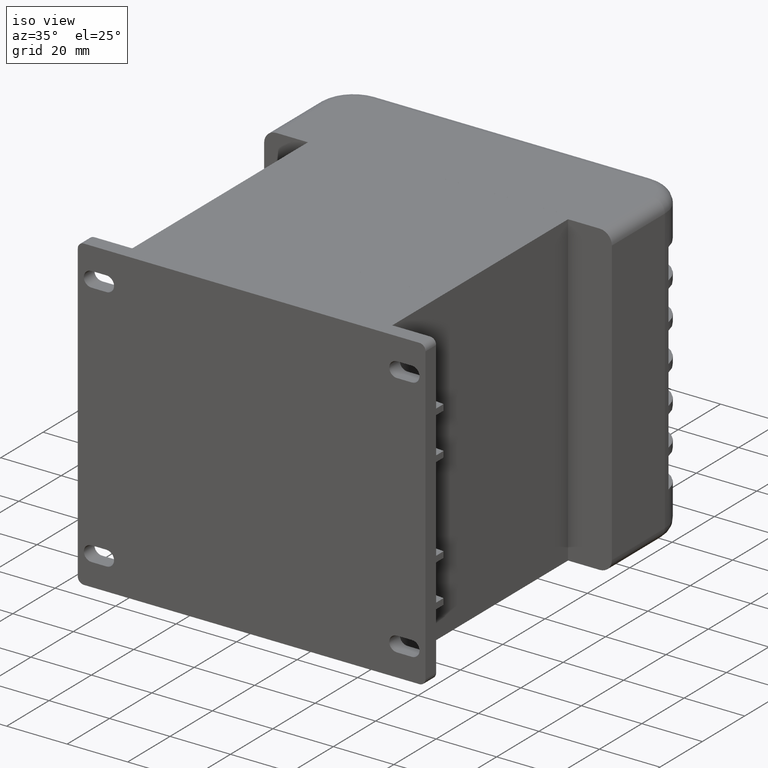
[diagram: clean part render]
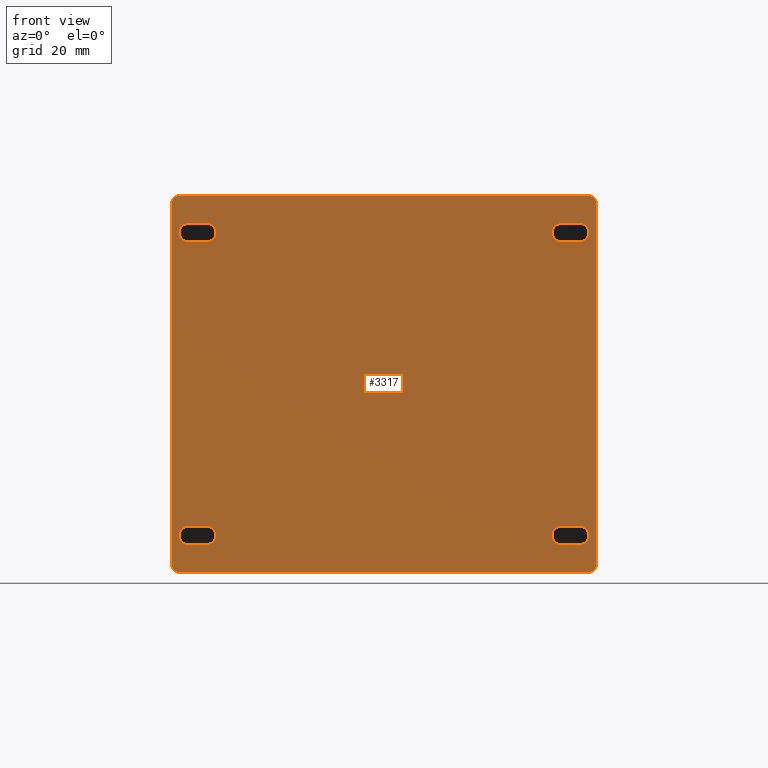
[diagram: tour spotlight — one face highlighted and labeled with its STEP entity id]
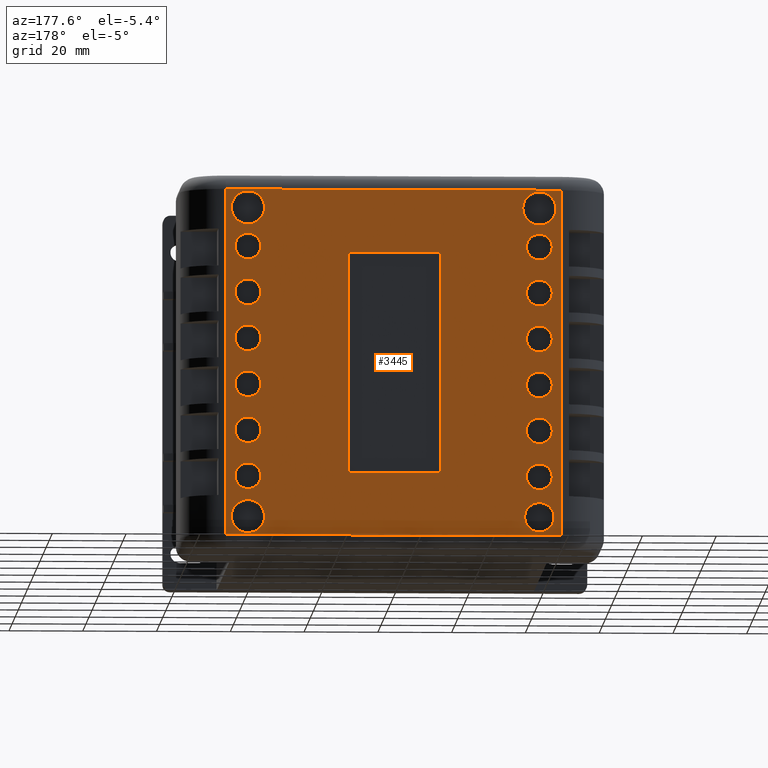
[diagram: tour spotlight — one face highlighted and labeled with its STEP entity id]
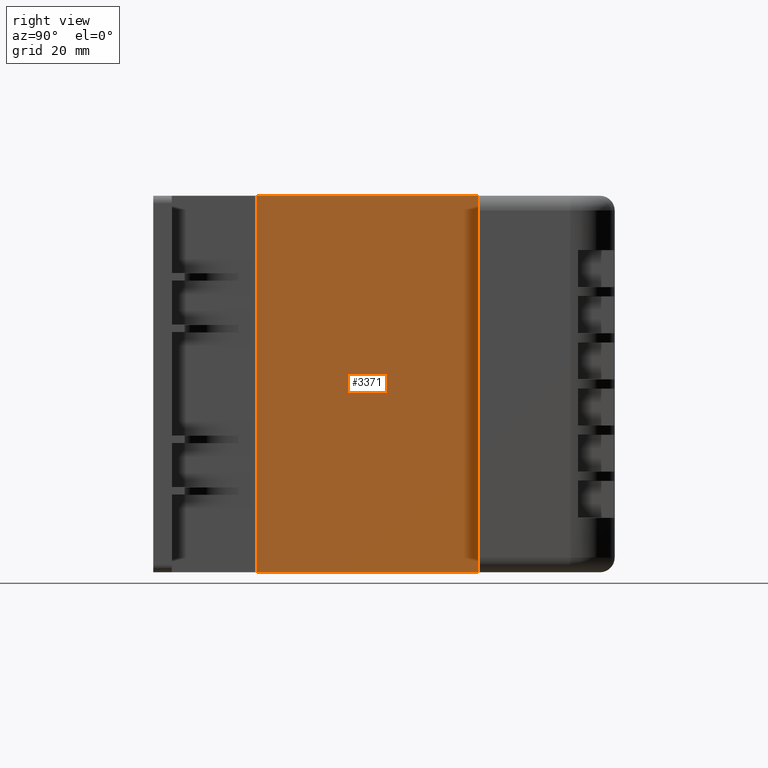
[diagram: tour spotlight — one face highlighted and labeled with its STEP entity id]
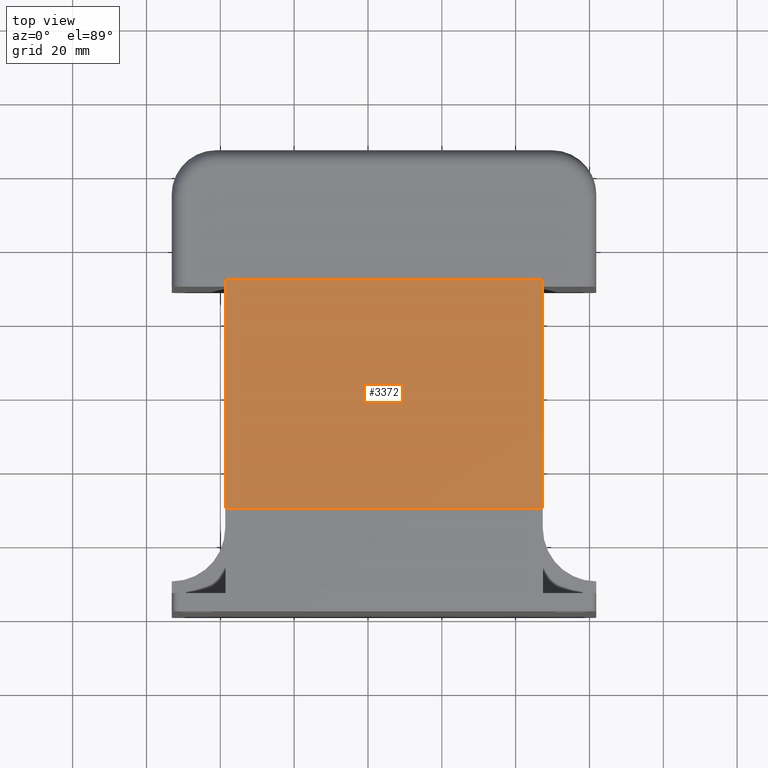
[diagram: tour spotlight — one face highlighted and labeled with its STEP entity id]
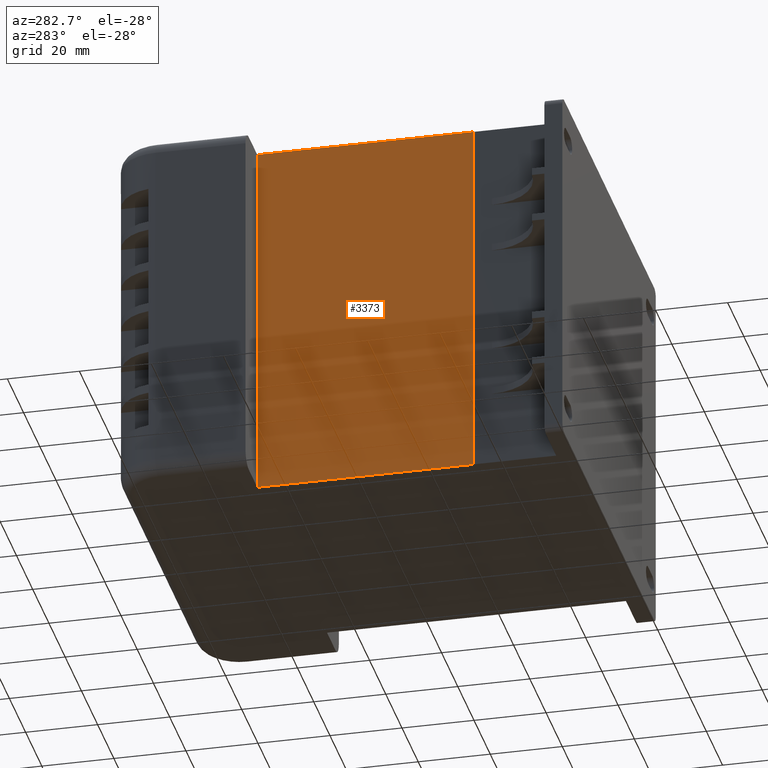
[diagram: tour spotlight — one face highlighted and labeled with its STEP entity id]
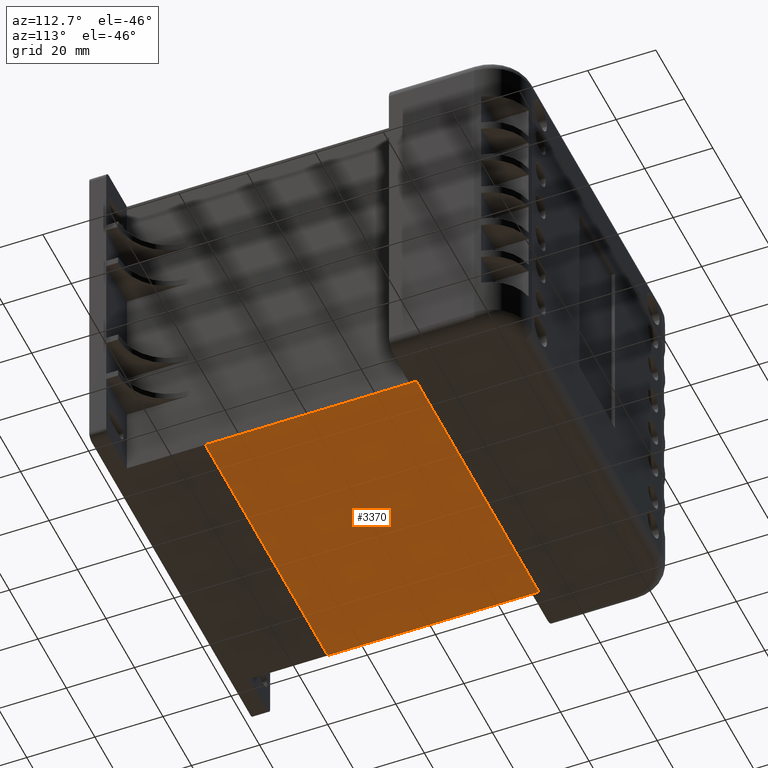
[diagram: tour spotlight — one face highlighted and labeled with its STEP entity id]
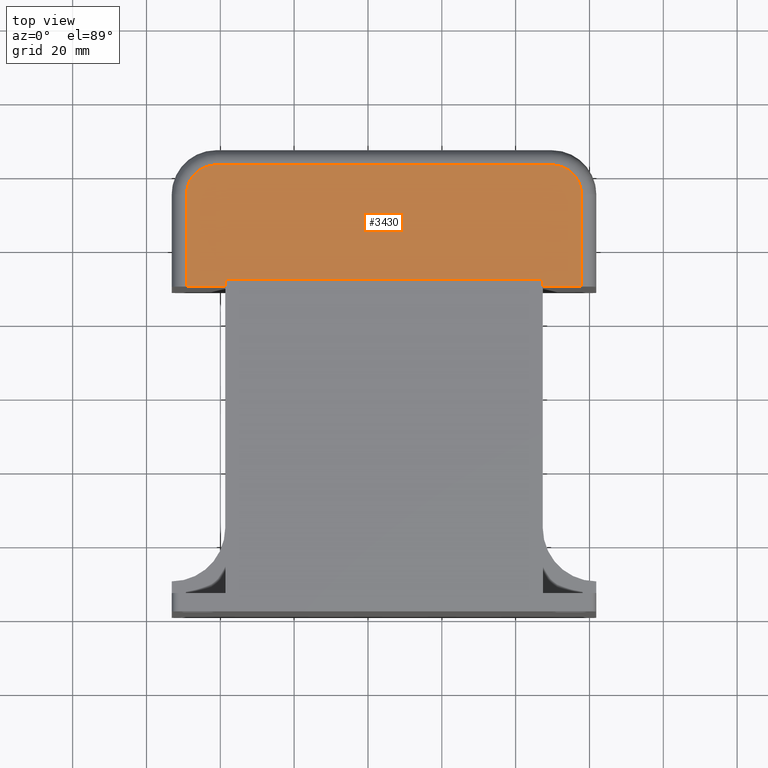
[diagram: tour spotlight — one face highlighted and labeled with its STEP entity id]
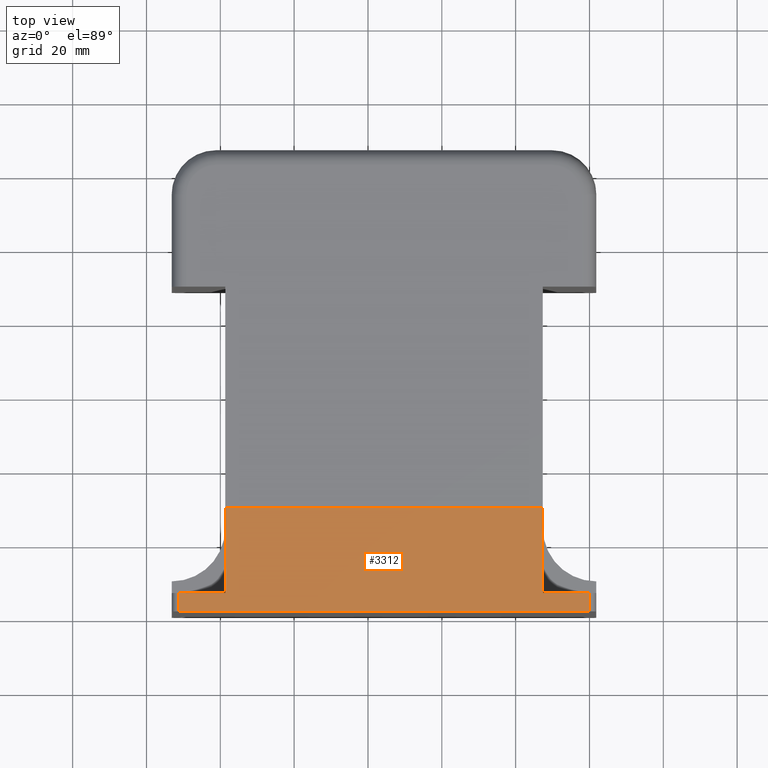
[diagram: tour spotlight — one face highlighted and labeled with its STEP entity id]
A machine part: a face-by-face anatomy tour. The part has 200 B-rep faces; the first image is the clean iso view, then the 8 largest visible faces are spotlighted one at a time (largest first), each with its STEP entity span.

Face 1 — front view, entity #3317. In plain terms, the highlighted planar face has unit normal (0, 1, 0).
Definition (entity closure, byte-faithful):
#94=CIRCLE('',#3601,2.5);
#96=CIRCLE('',#3605,2.5);
#98=CIRCLE('',#3609,2.5);
#100=CIRCLE('',#3613,2.5);
#102=CIRCLE('',#3617,2.5);
#103=CIRCLE('',#3620,2.5);
#104=CIRCLE('',#3623,2.5);
#105=CIRCLE('',#3626,2.5);
#106=CIRCLE('',#3629,1.99999999999999);
#107=CIRCLE('',#3632,1.99999999999999);
#108=CIRCLE('',#3635,1.99999999999999);
#110=CIRCLE('',#3639,1.99999999999999);
#209=FACE_BOUND('',#484,.T.);
#210=FACE_BOUND('',#485,.T.);
#211=FACE_BOUND('',#486,.T.);
#212=FACE_BOUND('',#487,.T.);
#278=FACE_OUTER_BOUND('',#483,.T.);
#483=EDGE_LOOP('',(#2216,#2217,#2218,#2219,#2220,#2221,#2222,#2223));
#484=EDGE_LOOP('',(#2224,#2225,#2226,#2227));
#485=EDGE_LOOP('',(#2228,#2229,#2230,#2231));
#486=EDGE_LOOP('',(#2232,#2233,#2234,#2235));
#487=EDGE_LOOP('',(#2236,#2237,#2238,#2239));
#713=LINE('',#4948,#1033);
#718=LINE('',#4962,#1038);
#721=LINE('',#4972,#1041);
#726=LINE('',#4986,#1046);
#729=LINE('',#4996,#1049);
#733=LINE('',#5005,#1053);
#735=LINE('',#5012,#1055);
#739=LINE('',#5021,#1059);
#741=LINE('',#5028,#1061);
#746=LINE('',#5039,#1066);
#749=LINE('',#5047,#1069);
#753=LINE('',#5059,#1073);
#1033=VECTOR('',#3970,10.);
#1038=VECTOR('',#3983,10.);
#1041=VECTOR('',#3994,10.);
#1046=VECTOR('',#4007,10.);
#1049=VECTOR('',#4018,10.);
#1053=VECTOR('',#4028,10.);
#1055=VECTOR('',#4036,10.);
#1059=VECTOR('',#4046,10.);
#1061=VECTOR('',#4054,10.);
#1066=VECTOR('',#4065,10.);
#1069=VECTOR('',#4074,10.);
#1073=VECTOR('',#4086,10.);
#1352=VERTEX_POINT('',#4946);
#1353=VERTEX_POINT('',#4947);
#1356=VERTEX_POINT('',#4955);
#1358=VERTEX_POINT('',#4961);
#1360=VERTEX_POINT('',#4970);
#1361=VERTEX_POINT('',#4971);
#1364=VERTEX_POINT('',#4979);
#1366=VERTEX_POINT('',#4985);
#1368=VERTEX_POINT('',#4994);
#1369=VERTEX_POINT('',#4995);
#1370=VERTEX_POINT('',#5000);
#1371=VERTEX_POINT('',#5004);
#1372=VERTEX_POINT('',#5010);
#1373=VERTEX_POINT('',#5011);
#1374=VERTEX_POINT('',#5016);
#1375=VERTEX_POINT('',#5020);
#1376=VERTEX_POINT('',#5026);
#1377=VERTEX_POINT('',#5027);
#1379=VERTEX_POINT('',#5034);
#1380=VERTEX_POINT('',#5038);
#1381=VERTEX_POINT('',#5042);
#1382=VERTEX_POINT('',#5046);
#1384=VERTEX_POINT('',#5052);
#1386=VERTEX_POINT('',#5058);
#1647=EDGE_CURVE('',#1352,#1353,#713,.T.);
#1651=EDGE_CURVE('',#1356,#1352,#94,.T.);
#1654=EDGE_CURVE('',#1358,#1356,#718,.T.);
#1657=EDGE_CURVE('',#1353,#1358,#96,.T.);
#1659=EDGE_CURVE('',#1360,#1361,#721,.T.);
#1663=EDGE_CURVE('',#1364,#1360,#98,.T.);
#1666=EDGE_CURVE('',#1366,#1364,#726,.T.);
#1669=EDGE_CURVE('',#1361,#1366,#100,.T.);
#1671=EDGE_CURVE('',#1368,#1369,#729,.T.);
#1674=EDGE_CURVE('',#1370,#1368,#102,.T.);
#1676=EDGE_CURVE('',#1371,#1370,#733,.T.);
#1678=EDGE_CURVE('',#1369,#1371,#103,.T.);
#1679=EDGE_CURVE('',#1372,#1373,#735,.T.);
#1682=EDGE_CURVE('',#1374,#1372,#104,.T.);
#1684=EDGE_CURVE('',#1375,#1374,#739,.T.);
#1686=EDGE_CURVE('',#1373,#1375,#105,.T.);
#1687=EDGE_CURVE('',#1376,#1377,#741,.T.);
#1691=EDGE_CURVE('',#1379,#1376,#106,.T.);
#1693=EDGE_CURVE('',#1380,#1379,#746,.T.);
#1695=EDGE_CURVE('',#1381,#1380,#107,.T.);
#1697=EDGE_CURVE('',#1382,#1381,#749,.T.);
#1700=EDGE_CURVE('',#1384,#1382,#108,.T.);
#1703=EDGE_CURVE('',#1386,#1384,#753,.T.);
#1706=EDGE_CURVE('',#1377,#1386,#110,.T.);
#2216=ORIENTED_EDGE('',*,*,#1706,.F.);
#2217=ORIENTED_EDGE('',*,*,#1687,.F.);
#2218=ORIENTED_EDGE('',*,*,#1691,.F.);
#2219=ORIENTED_EDGE('',*,*,#1693,.F.);
#2220=ORIENTED_EDGE('',*,*,#1695,.F.);
#2221=ORIENTED_EDGE('',*,*,#1697,.F.);
#2222=ORIENTED_EDGE('',*,*,#1700,.F.);
#2223=ORIENTED_EDGE('',*,*,#1703,.F.);
#2224=ORIENTED_EDGE('',*,*,#1686,.F.);
#2225=ORIENTED_EDGE('',*,*,#1679,.F.);
#2226=ORIENTED_EDGE('',*,*,#1682,.F.);
#2227=ORIENTED_EDGE('',*,*,#1684,.F.);
#2228=ORIENTED_EDGE('',*,*,#1678,.F.);
#2229=ORIENTED_EDGE('',*,*,#1671,.F.);
#2230=ORIENTED_EDGE('',*,*,#1674,.F.);
#2231=ORIENTED_EDGE('',*,*,#1676,.F.);
#2232=ORIENTED_EDGE('',*,*,#1669,.F.);
#2233=ORIENTED_EDGE('',*,*,#1659,.F.);
#2234=ORIENTED_EDGE('',*,*,#1663,.F.);
#2235=ORIENTED_EDGE('',*,*,#1666,.F.);
#2236=ORIENTED_EDGE('',*,*,#1657,.F.);
#2237=ORIENTED_EDGE('',*,*,#1647,.F.);
#2238=ORIENTED_EDGE('',*,*,#1651,.F.);
#2239=ORIENTED_EDGE('',*,*,#1654,.F.);
#2942=PLANE('',#3642);
#3317=ADVANCED_FACE('',(#278,#209,#210,#211,#212),#2942,.F.);
#3601=AXIS2_PLACEMENT_3D('',#4956,#3976,#3977);
#3605=AXIS2_PLACEMENT_3D('',#4967,#3988,#3989);
#3609=AXIS2_PLACEMENT_3D('',#4980,#4000,#4001);
#3613=AXIS2_PLACEMENT_3D('',#4991,#4012,#4013);
#3617=AXIS2_PLACEMENT_3D('',#5001,#4023,#4024);
#3620=AXIS2_PLACEMENT_3D('',#5008,#4032,#4033);
#3623=AXIS2_PLACEMENT_3D('',#5017,#4041,#4042);
#3626=AXIS2_PLACEMENT_3D('',#5024,#4050,#4051);
#3629=AXIS2_PLACEMENT_3D('',#5035,#4060,#4061);
#3632=AXIS2_PLACEMENT_3D('',#5043,#4069,#4070);
#3635=AXIS2_PLACEMENT_3D('',#5053,#4079,#4080);
#3639=AXIS2_PLACEMENT_3D('',#5064,#4091,#4092);
#3642=AXIS2_PLACEMENT_3D('',#5067,#4097,#4098);
#3970=DIRECTION('',(-1.,0.,7.105427357601E-15));
#3976=DIRECTION('center_axis',(0.,-1.,0.));
#3977=DIRECTION('ref_axis',(-7.105427357601E-15,0.,-1.));
#3983=DIRECTION('',(1.,0.,1.20792265079217E-13));
#3988=DIRECTION('center_axis',(0.,-1.,0.));
#3989=DIRECTION('ref_axis',(7.10542735759929E-15,0.,1.));
#3994=DIRECTION('',(-1.,0.,7.105427357601E-15));
#4000=DIRECTION('center_axis',(0.,-1.,0.));
#4001=DIRECTION('ref_axis',(-7.105427357601E-15,0.,-1.));
#4007=DIRECTION('',(1.,0.,1.20792265079217E-13));
#4012=DIRECTION('center_axis',(0.,-1.,0.));
#4013=DIRECTION('ref_axis',(7.10542735759929E-15,0.,1.));
#4018=DIRECTION('',(-1.,0.,7.105427357601E-15));
#4023=DIRECTION('center_axis',(0.,-1.,0.));
#4024=DIRECTION('ref_axis',(-7.105427357601E-15,0.,-1.));
#4028=DIRECTION('',(1.,0.,1.20792265079217E-13));
#4032=DIRECTION('center_axis',(0.,-1.,0.));
#4033=DIRECTION('ref_axis',(6.21724893789937E-15,0.,1.));
#4036=DIRECTION('',(-1.,0.,7.105427357601E-15));
#4041=DIRECTION('center_axis',(0.,-1.,0.));
#4042=DIRECTION('ref_axis',(-7.105427357601E-15,0.,-1.));
#4046=DIRECTION('',(1.,0.,1.20792265079217E-13));
#4050=DIRECTION('center_axis',(0.,-1.,0.));
#4051=DIRECTION('ref_axis',(7.10542735759929E-15,0.,1.));
#4054=DIRECTION('',(-1.,0.,0.));
#4060=DIRECTION('center_axis',(0.,1.,0.));
#4061=DIRECTION('ref_axis',(1.,0.,2.49800180540662E-15));
#4065=DIRECTION('',(1.13288063737261E-17,0.,-1.));
#4069=DIRECTION('center_axis',(0.,1.,0.));
#4070=DIRECTION('ref_axis',(0.,0.,1.));
#4074=DIRECTION('',(1.,0.,1.60032147693716E-16));
#4079=DIRECTION('center_axis',(0.,1.,0.));
#4080=DIRECTION('ref_axis',(-1.,0.,0.));
#4086=DIRECTION('',(1.81260901979617E-16,0.,1.));
#4091=DIRECTION('center_axis',(0.,1.,0.));
#4092=DIRECTION('ref_axis',(0.,0.,-1.));
#4097=DIRECTION('center_axis',(0.,1.,0.));
#4098=DIRECTION('ref_axis',(0.,0.,1.));
#4946=CARTESIAN_POINT('',(-105.5,0.,94.5));
#4947=CARTESIAN_POINT('',(-110.5,0.,94.5));
#4948=CARTESIAN_POINT('',(-105.5,0.,94.5));
#4955=CARTESIAN_POINT('',(-105.5,0.,89.5));
#4956=CARTESIAN_POINT('Origin',(-105.5,0.,92.));
#4961=CARTESIAN_POINT('',(-110.5,0.,89.4999999999994));
#4962=CARTESIAN_POINT('',(-110.5,0.,89.4999999999994));
#4967=CARTESIAN_POINT('Origin',(-110.5,0.,92.));
#4970=CARTESIAN_POINT('',(-105.5,0.,12.5));
#4971=CARTESIAN_POINT('',(-110.5,0.,12.5));
#4972=CARTESIAN_POINT('',(-105.5,0.,12.5));
#4979=CARTESIAN_POINT('',(-105.5,0.,7.49999999999998));
#4980=CARTESIAN_POINT('Origin',(-105.5,0.,9.99999999999998));
#4985=CARTESIAN_POINT('',(-110.5,0.,7.49999999999938));
#4986=CARTESIAN_POINT('',(-110.5,0.,7.49999999999938));
#4991=CARTESIAN_POINT('Origin',(-110.5,0.,9.99999999999998));
#4994=CARTESIAN_POINT('',(-4.49999999999999,0.,94.5));
#4995=CARTESIAN_POINT('',(-9.49999999999999,0.,94.5));
#4996=CARTESIAN_POINT('',(-4.49999999999999,0.,94.5));
#5000=CARTESIAN_POINT('',(-4.50000000000003,0.,89.5));
#5001=CARTESIAN_POINT('Origin',(-4.50000000000001,0.,92.));
#5004=CARTESIAN_POINT('',(-9.50000000000003,0.,89.4999999999994));
#5005=CARTESIAN_POINT('',(-9.50000000000003,0.,89.4999999999994));
#5008=CARTESIAN_POINT('Origin',(-9.50000000000001,0.,92.));
#5010=CARTESIAN_POINT('',(-4.49999999999998,0.,12.5));
#5011=CARTESIAN_POINT('',(-9.49999999999998,0.,12.5));
#5012=CARTESIAN_POINT('',(-4.49999999999998,0.,12.5));
#5016=CARTESIAN_POINT('',(-4.50000000000001,0.,7.49999999999998));
#5017=CARTESIAN_POINT('Origin',(-4.49999999999999,0.,9.99999999999998));
#5020=CARTESIAN_POINT('',(-9.50000000000001,0.,7.49999999999937));
#5021=CARTESIAN_POINT('',(-9.50000000000001,0.,7.49999999999937));
#5024=CARTESIAN_POINT('Origin',(-9.49999999999999,0.,9.99999999999998));
#5026=CARTESIAN_POINT('',(-2.,0.,0.));
#5027=CARTESIAN_POINT('',(-113.,0.,0.));
#5028=CARTESIAN_POINT('',(-2.,0.,0.));
#5034=CARTESIAN_POINT('',(1.11022302462516E-15,0.,1.99999999999999));
#5035=CARTESIAN_POINT('Origin',(-1.99999999999999,0.,1.99999999999999));
#5038=CARTESIAN_POINT('',(0.,0.,100.));
#5039=CARTESIAN_POINT('',(0.,0.,100.));
#5042=CARTESIAN_POINT('',(-2.,0.,102.));
#5043=CARTESIAN_POINT('Origin',(-2.,0.,100.));
#5046=CARTESIAN_POINT('',(-113.,0.,102.));
#5047=CARTESIAN_POINT('',(-113.,0.,102.));
#5052=CARTESIAN_POINT('',(-115.,0.,100.));
#5053=CARTESIAN_POINT('Origin',(-113.,0.,100.));
#5058=CARTESIAN_POINT('',(-115.,0.,2.));
#5059=CARTESIAN_POINT('',(-115.,0.,2.));
#5064=CARTESIAN_POINT('Origin',(-113.,0.,2.));
#5067=CARTESIAN_POINT('Origin',(-57.5,0.,51.));

Face 2 — auxiliary view, entity #3445. In plain terms, the highlighted planar face has unit normal (0, 1, 0).
Definition (entity closure, byte-faithful):
#134=CIRCLE('',#3737,4.5);
#136=CIRCLE('',#3741,3.5);
#138=CIRCLE('',#3745,3.5);
#140=CIRCLE('',#3749,3.5);
#142=CIRCLE('',#3753,3.5);
#144=CIRCLE('',#3757,4.5);
#146=CIRCLE('',#3761,3.5);
#148=CIRCLE('',#3765,3.5);
#150=CIRCLE('',#3769,3.5);
#152=CIRCLE('',#3773,3.5);
#154=CIRCLE('',#3777,3.5);
#156=CIRCLE('',#3781,4.5);
#158=CIRCLE('',#3785,3.5);
#160=CIRCLE('',#3789,4.);
#162=CIRCLE('',#3793,3.5);
#164=CIRCLE('',#3797,3.5);
#221=FACE_BOUND('',#624,.T.);
#222=FACE_BOUND('',#625,.T.);
#223=FACE_BOUND('',#626,.T.);
#224=FACE_BOUND('',#627,.T.);
#225=FACE_BOUND('',#628,.T.);
#226=FACE_BOUND('',#629,.T.);
#227=FACE_BOUND('',#630,.T.);
#228=FACE_BOUND('',#631,.T.);
#229=FACE_BOUND('',#632,.T.);
#230=FACE_BOUND('',#633,.T.);
#231=FACE_BOUND('',#634,.T.);
#232=FACE_BOUND('',#635,.T.);
#233=FACE_BOUND('',#636,.T.);
#234=FACE_BOUND('',#637,.T.);
#235=FACE_BOUND('',#638,.T.);
#236=FACE_BOUND('',#639,.T.);
#237=FACE_BOUND('',#640,.T.);
#406=FACE_OUTER_BOUND('',#623,.T.);
#623=EDGE_LOOP('',(#2742,#2743,#2744,#2745));
#624=EDGE_LOOP('',(#2746,#2747,#2748,#2749));
#625=EDGE_LOOP('',(#2750));
#626=EDGE_LOOP('',(#2751));
#627=EDGE_LOOP('',(#2752));
#628=EDGE_LOOP('',(#2753));
#629=EDGE_LOOP('',(#2754));
#630=EDGE_LOOP('',(#2755));
#631=EDGE_LOOP('',(#2756));
#632=EDGE_LOOP('',(#2757));
#633=EDGE_LOOP('',(#2758));
#634=EDGE_LOOP('',(#2759));
#635=EDGE_LOOP('',(#2760));
#636=EDGE_LOOP('',(#2761));
#637=EDGE_LOOP('',(#2762));
#638=EDGE_LOOP('',(#2763));
#639=EDGE_LOOP('',(#2764));
#640=EDGE_LOOP('',(#2765));
#879=LINE('',#5382,#1199);
#883=LINE('',#5390,#1203);
#886=LINE('',#5396,#1206);
#889=LINE('',#5401,#1209);
#908=LINE('',#5527,#1228);
#914=LINE('',#5554,#1234);
#918=LINE('',#5567,#1238);
#955=LINE('',#5665,#1275);
#1199=VECTOR('',#4400,10.);
#1203=VECTOR('',#4406,10.);
#1206=VECTOR('',#4411,10.);
#1209=VECTOR('',#4416,10.);
#1228=VECTOR('',#4579,10.);
#1234=VECTOR('',#4611,10.);
#1238=VECTOR('',#4631,10.);
#1275=VECTOR('',#4718,10.);
#1488=VERTEX_POINT('',#5380);
#1489=VERTEX_POINT('',#5381);
#1492=VERTEX_POINT('',#5389);
#1494=VERTEX_POINT('',#5395);
#1496=VERTEX_POINT('',#5405);
#1498=VERTEX_POINT('',#5412);
#1500=VERTEX_POINT('',#5419);
#1502=VERTEX_POINT('',#5426);
#1504=VERTEX_POINT('',#5433);
#1506=VERTEX_POINT('',#5440);
#1508=VERTEX_POINT('',#5447);
#1510=VERTEX_POINT('',#5454);
#1512=VERTEX_POINT('',#5461);
#1514=VERTEX_POINT('',#5468);
#1516=VERTEX_POINT('',#5475);
#1518=VERTEX_POINT('',#5482);
#1520=VERTEX_POINT('',#5489);
#1522=VERTEX_POINT('',#5496);
#1524=VERTEX_POINT('',#5503);
#1526=VERTEX_POINT('',#5510);
#1529=VERTEX_POINT('',#5521);
#1530=VERTEX_POINT('',#5525);
#1536=VERTEX_POINT('',#5546);
#1538=VERTEX_POINT('',#5552);
#1853=EDGE_CURVE('',#1488,#1489,#879,.T.);
#1857=EDGE_CURVE('',#1492,#1488,#883,.T.);
#1860=EDGE_CURVE('',#1494,#1492,#886,.T.);
#1863=EDGE_CURVE('',#1489,#1494,#889,.T.);
#1865=EDGE_CURVE('',#1496,#1496,#134,.T.);
#1868=EDGE_CURVE('',#1498,#1498,#136,.T.);
#1871=EDGE_CURVE('',#1500,#1500,#138,.T.);
#1874=EDGE_CURVE('',#1502,#1502,#140,.T.);
#1877=EDGE_CURVE('',#1504,#1504,#142,.T.);
#1880=EDGE_CURVE('',#1506,#1506,#144,.T.);
#1883=EDGE_CURVE('',#1508,#1508,#146,.T.);
#1886=EDGE_CURVE('',#1510,#1510,#148,.T.);
#1889=EDGE_CURVE('',#1512,#1512,#150,.T.);
#1892=EDGE_CURVE('',#1514,#1514,#152,.T.);
#1895=EDGE_CURVE('',#1516,#1516,#154,.T.);
#1898=EDGE_CURVE('',#1518,#1518,#156,.T.);
#1901=EDGE_CURVE('',#1520,#1520,#158,.T.);
#1904=EDGE_CURVE('',#1522,#1522,#160,.T.);
#1907=EDGE_CURVE('',#1524,#1524,#162,.T.);
#1910=EDGE_CURVE('',#1526,#1526,#164,.T.);
#1918=EDGE_CURVE('',#1530,#1529,#908,.T.);
#1931=EDGE_CURVE('',#1538,#1536,#914,.T.);
#1938=EDGE_CURVE('',#1536,#1530,#918,.T.);
#1987=EDGE_CURVE('',#1529,#1538,#955,.T.);
#2742=ORIENTED_EDGE('',*,*,#1918,.F.);
#2743=ORIENTED_EDGE('',*,*,#1938,.F.);
#2744=ORIENTED_EDGE('',*,*,#1931,.F.);
#2745=ORIENTED_EDGE('',*,*,#1987,.F.);
#2746=ORIENTED_EDGE('',*,*,#1853,.T.);
#2747=ORIENTED_EDGE('',*,*,#1863,.T.);
#2748=ORIENTED_EDGE('',*,*,#1860,.T.);
#2749=ORIENTED_EDGE('',*,*,#1857,.T.);
#2750=ORIENTED_EDGE('',*,*,#1865,.T.);
#2751=ORIENTED_EDGE('',*,*,#1868,.T.);
#2752=ORIENTED_EDGE('',*,*,#1871,.T.);
#2753=ORIENTED_EDGE('',*,*,#1874,.T.);
#2754=ORIENTED_EDGE('',*,*,#1877,.T.);
#2755=ORIENTED_EDGE('',*,*,#1880,.T.);
#2756=ORIENTED_EDGE('',*,*,#1883,.T.);
#2757=ORIENTED_EDGE('',*,*,#1886,.T.);
#2758=ORIENTED_EDGE('',*,*,#1889,.T.);
#2759=ORIENTED_EDGE('',*,*,#1892,.T.);
#2760=ORIENTED_EDGE('',*,*,#1895,.T.);
#2761=ORIENTED_EDGE('',*,*,#1898,.T.);
#2762=ORIENTED_EDGE('',*,*,#1901,.T.);
#2763=ORIENTED_EDGE('',*,*,#1904,.T.);
#2764=ORIENTED_EDGE('',*,*,#1907,.T.);
#2765=ORIENTED_EDGE('',*,*,#1910,.T.);
#3035=PLANE('',#3852);
#3445=ADVANCED_FACE('',(#406,#221,#222,#223,#224,#225,#226,#227,#228,#229,
#230,#231,#232,#233,#234,#235,#236,#237),#3035,.T.);
#3737=AXIS2_PLACEMENT_3D('',#5406,#4422,#4423);
#3741=AXIS2_PLACEMENT_3D('',#5413,#4431,#4432);
#3745=AXIS2_PLACEMENT_3D('',#5420,#4440,#4441);
#3749=AXIS2_PLACEMENT_3D('',#5427,#4449,#4450);
#3753=AXIS2_PLACEMENT_3D('',#5434,#4458,#4459);
#3757=AXIS2_PLACEMENT_3D('',#5441,#4467,#4468);
#3761=AXIS2_PLACEMENT_3D('',#5448,#4476,#4477);
#3765=AXIS2_PLACEMENT_3D('',#5455,#4485,#4486);
#3769=AXIS2_PLACEMENT_3D('',#5462,#4494,#4495);
#3773=AXIS2_PLACEMENT_3D('',#5469,#4503,#4504);
#3777=AXIS2_PLACEMENT_3D('',#5476,#4512,#4513);
#3781=AXIS2_PLACEMENT_3D('',#5483,#4521,#4522);
#3785=AXIS2_PLACEMENT_3D('',#5490,#4530,#4531);
#3789=AXIS2_PLACEMENT_3D('',#5497,#4539,#4540);
#3793=AXIS2_PLACEMENT_3D('',#5504,#4548,#4549);
#3797=AXIS2_PLACEMENT_3D('',#5511,#4557,#4558);
#3852=AXIS2_PLACEMENT_3D('',#5664,#4716,#4717);
#4400=DIRECTION('',(1.,0.,-8.88178419700125E-16));
#4406=DIRECTION('',(0.,0.,-1.));
#4411=DIRECTION('',(-1.,0.,-2.1316282072803E-15));
#4416=DIRECTION('',(0.,0.,1.));
#4422=DIRECTION('center_axis',(0.,-1.,0.));
#4423=DIRECTION('ref_axis',(1.,0.,0.));
#4431=DIRECTION('center_axis',(0.,-1.,0.));
#4432=DIRECTION('ref_axis',(1.,0.,0.));
#4440=DIRECTION('center_axis',(0.,-1.,0.));
#4441=DIRECTION('ref_axis',(1.,0.,0.));
#4449=DIRECTION('center_axis',(0.,-1.,0.));
#4450=DIRECTION('ref_axis',(1.,0.,0.));
#4458=DIRECTION('center_axis',(0.,-1.,0.));
#4459=DIRECTION('ref_axis',(1.,0.,0.));
#4467=DIRECTION('center_axis',(0.,-1.,0.));
#4468=DIRECTION('ref_axis',(1.,0.,0.));
#4476=DIRECTION('center_axis',(0.,-1.,0.));
#4477=DIRECTION('ref_axis',(1.,0.,0.));
#4485=DIRECTION('center_axis',(0.,-1.,0.));
#4486=DIRECTION('ref_axis',(1.,0.,0.));
#4494=DIRECTION('center_axis',(0.,-1.,0.));
#4495=DIRECTION('ref_axis',(1.,0.,0.));
#4503=DIRECTION('center_axis',(0.,-1.,0.));
#4504=DIRECTION('ref_axis',(1.,0.,0.));
#4512=DIRECTION('center_axis',(0.,-1.,0.));
#4513=DIRECTION('ref_axis',(1.,0.,0.));
#4521=DIRECTION('center_axis',(0.,-1.,0.));
#4522=DIRECTION('ref_axis',(1.,0.,0.));
#4530=DIRECTION('center_axis',(0.,-1.,0.));
#4531=DIRECTION('ref_axis',(1.,0.,0.));
#4539=DIRECTION('center_axis',(0.,-1.,0.));
#4540=DIRECTION('ref_axis',(1.,0.,0.));
#4548=DIRECTION('center_axis',(0.,-1.,0.));
#4549=DIRECTION('ref_axis',(1.,0.,0.));
#4557=DIRECTION('center_axis',(0.,-1.,0.));
#4558=DIRECTION('ref_axis',(1.,0.,0.));
#4579=DIRECTION('',(1.,0.,-1.71491501135003E-32));
#4611=DIRECTION('',(-1.,0.,0.));
#4631=DIRECTION('',(-3.483052626275E-16,0.,-1.));
#4716=DIRECTION('center_axis',(0.,1.,0.));
#4717=DIRECTION('ref_axis',(0.,0.,1.));
#4718=DIRECTION('',(3.483052626275E-16,0.,1.));
#5380=CARTESIAN_POINT('',(-70.1678404338007,37.,21.));
#5381=CARTESIAN_POINT('',(-45.1678404338007,37.,21.));
#5382=CARTESIAN_POINT('',(-63.8339202169004,37.,21.));
#5389=CARTESIAN_POINT('',(-70.1678404338007,37.,81.));
#5390=CARTESIAN_POINT('',(-70.1678404338008,37.,66.));
#5395=CARTESIAN_POINT('',(-45.1678404338007,37.,81.));
#5396=CARTESIAN_POINT('',(-51.3339202169004,37.,81.));
#5401=CARTESIAN_POINT('',(-45.1678404338008,37.,36.));
#5405=CARTESIAN_POINT('',(-101.5,37.,93.));
#5406=CARTESIAN_POINT('Origin',(-97.,37.,93.));
#5412=CARTESIAN_POINT('',(-100.5,37.,32.5));
#5413=CARTESIAN_POINT('Origin',(-97.,37.,32.5));
#5419=CARTESIAN_POINT('',(-21.5,37.,20.));
#5420=CARTESIAN_POINT('Origin',(-18.,37.,20.));
#5426=CARTESIAN_POINT('',(-21.5,37.,70.));
#5427=CARTESIAN_POINT('Origin',(-18.,37.,70.));
#5433=CARTESIAN_POINT('',(-21.5,37.,57.5));
#5434=CARTESIAN_POINT('Origin',(-18.,37.,57.5));
#5440=CARTESIAN_POINT('',(-22.5,37.,9.));
#5441=CARTESIAN_POINT('Origin',(-18.,37.,9.));
#5447=CARTESIAN_POINT('',(-100.5,37.,45.));
#5448=CARTESIAN_POINT('Origin',(-97.,37.,45.));
#5454=CARTESIAN_POINT('',(-21.5,37.,82.5));
#5455=CARTESIAN_POINT('Origin',(-18.,37.,82.5));
#5461=CARTESIAN_POINT('',(-100.5,37.,70.));
#5462=CARTESIAN_POINT('Origin',(-97.,37.,70.));
#5468=CARTESIAN_POINT('',(-100.5,37.,20.));
#5469=CARTESIAN_POINT('Origin',(-97.,37.,20.));
#5475=CARTESIAN_POINT('',(-21.5,37.,32.5));
#5476=CARTESIAN_POINT('Origin',(-18.,37.,32.5));
#5482=CARTESIAN_POINT('',(-22.5,37.,93.));
#5483=CARTESIAN_POINT('Origin',(-18.,37.,93.));
#5489=CARTESIAN_POINT('',(-21.5,37.,45.));
#5490=CARTESIAN_POINT('Origin',(-18.,37.,45.));
#5496=CARTESIAN_POINT('',(-101.,37.,9.));
#5497=CARTESIAN_POINT('Origin',(-97.,37.,9.));
#5503=CARTESIAN_POINT('',(-100.5,37.,57.5));
#5504=CARTESIAN_POINT('Origin',(-97.,37.,57.5));
#5510=CARTESIAN_POINT('',(-100.5,37.,82.5));
#5511=CARTESIAN_POINT('Origin',(-97.,37.,82.5));
#5521=CARTESIAN_POINT('',(-12.,37.,4.));
#5525=CARTESIAN_POINT('',(-103.,37.,4.));
#5527=CARTESIAN_POINT('',(-28.75,37.,4.));
#5546=CARTESIAN_POINT('',(-103.,37.,98.));
#5552=CARTESIAN_POINT('',(-12.,37.,98.));
#5554=CARTESIAN_POINT('',(-86.25,37.,98.));
#5567=CARTESIAN_POINT('',(-103.,37.,25.5));
#5664=CARTESIAN_POINT('Origin',(-57.5,37.,51.));
#5665=CARTESIAN_POINT('',(-12.,37.,76.5));

Face 3 — right view, entity #3371. In plain terms, the highlighted planar face has unit normal (1, 0, -0).
Definition (entity closure, byte-faithful):
#332=FACE_OUTER_BOUND('',#541,.T.);
#541=EDGE_LOOP('',(#2452,#2453,#2454,#2455));
#851=LINE('',#5309,#1171);
#852=LINE('',#5312,#1172);
#853=LINE('',#5314,#1173);
#854=LINE('',#5315,#1174);
#1171=VECTOR('',#4334,10.);
#1172=VECTOR('',#4337,10.);
#1173=VECTOR('',#4338,10.);
#1174=VECTOR('',#4339,10.);
#1460=VERTEX_POINT('',#5302);
#1463=VERTEX_POINT('',#5307);
#1464=VERTEX_POINT('',#5311);
#1465=VERTEX_POINT('',#5313);
#1819=EDGE_CURVE('',#1460,#1463,#851,.T.);
#1820=EDGE_CURVE('',#1464,#1460,#852,.T.);
#1821=EDGE_CURVE('',#1465,#1463,#853,.T.);
#1822=EDGE_CURVE('',#1464,#1465,#854,.T.);
#2452=ORIENTED_EDGE('',*,*,#1820,.T.);
#2453=ORIENTED_EDGE('',*,*,#1819,.T.);
#2454=ORIENTED_EDGE('',*,*,#1821,.F.);
#2455=ORIENTED_EDGE('',*,*,#1822,.F.);
#2988=PLANE('',#3713);
#3371=ADVANCED_FACE('',(#332),#2988,.T.);
#3713=AXIS2_PLACEMENT_3D('',#5310,#4335,#4336);
#4334=DIRECTION('',(0.,1.,0.));
#4335=DIRECTION('center_axis',(1.,0.,-2.61228946970625E-16));
#4336=DIRECTION('ref_axis',(-2.61228946970625E-16,0.,-1.));
#4337=DIRECTION('',(-2.61228946970625E-16,0.,-1.));
#4338=DIRECTION('',(-2.61228946970625E-16,0.,-1.));
#4339=DIRECTION('',(0.,1.,0.));
#5302=CARTESIAN_POINT('',(0.,0.,0.));
#5307=CARTESIAN_POINT('',(0.,62.,0.));
#5309=CARTESIAN_POINT('',(0.,0.,0.));
#5310=CARTESIAN_POINT('Origin',(2.66453525910038E-14,0.,102.));
#5311=CARTESIAN_POINT('',(2.66453525910038E-14,0.,102.));
#5312=CARTESIAN_POINT('',(2.66453525910038E-14,0.,102.));
#5313=CARTESIAN_POINT('',(1.77635683940025E-14,62.,102.));
#5314=CARTESIAN_POINT('',(2.66453525910038E-14,62.,102.));
#5315=CARTESIAN_POINT('',(2.66453525910038E-14,0.,102.));

Face 4 — top view, entity #3372. In plain terms, the highlighted planar face has unit normal (0, 0, 1).
Definition (entity closure, byte-faithful):
#333=FACE_OUTER_BOUND('',#542,.T.);
#542=EDGE_LOOP('',(#2456,#2457,#2458,#2459));
#854=LINE('',#5315,#1174);
#855=LINE('',#5318,#1175);
#856=LINE('',#5320,#1176);
#857=LINE('',#5321,#1177);
#1174=VECTOR('',#4339,10.);
#1175=VECTOR('',#4342,10.);
#1176=VECTOR('',#4343,10.);
#1177=VECTOR('',#4344,10.);
#1464=VERTEX_POINT('',#5311);
#1465=VERTEX_POINT('',#5313);
#1466=VERTEX_POINT('',#5317);
#1467=VERTEX_POINT('',#5319);
#1822=EDGE_CURVE('',#1464,#1465,#854,.T.);
#1823=EDGE_CURVE('',#1466,#1464,#855,.T.);
#1824=EDGE_CURVE('',#1467,#1465,#856,.T.);
#1825=EDGE_CURVE('',#1466,#1467,#857,.T.);
#2456=ORIENTED_EDGE('',*,*,#1823,.T.);
#2457=ORIENTED_EDGE('',*,*,#1822,.T.);
#2458=ORIENTED_EDGE('',*,*,#1824,.F.);
#2459=ORIENTED_EDGE('',*,*,#1825,.F.);
#2989=PLANE('',#3714);
#3372=ADVANCED_FACE('',(#333),#2989,.T.);
#3714=AXIS2_PLACEMENT_3D('',#5316,#4340,#4341);
#4339=DIRECTION('',(0.,1.,0.));
#4340=DIRECTION('center_axis',(0.,0.,1.));
#4341=DIRECTION('ref_axis',(1.,0.,0.));
#4342=DIRECTION('',(1.,0.,0.));
#4343=DIRECTION('',(1.,0.,0.));
#4344=DIRECTION('',(0.,1.,0.));
#5311=CARTESIAN_POINT('',(2.66453525910038E-14,0.,102.));
#5313=CARTESIAN_POINT('',(1.77635683940025E-14,62.,102.));
#5315=CARTESIAN_POINT('',(2.66453525910038E-14,0.,102.));
#5316=CARTESIAN_POINT('Origin',(-86.,0.,102.));
#5317=CARTESIAN_POINT('',(-86.,0.,102.));
#5318=CARTESIAN_POINT('',(-86.,0.,102.));
#5319=CARTESIAN_POINT('',(-86.,62.,102.));
#5320=CARTESIAN_POINT('',(-86.,62.,102.));
#5321=CARTESIAN_POINT('',(-86.,0.,102.));

Face 5 — auxiliary view, entity #3373. In plain terms, the highlighted planar face has unit normal (-1, 0, 0).
Definition (entity closure, byte-faithful):
#334=FACE_OUTER_BOUND('',#543,.T.);
#543=EDGE_LOOP('',(#2460,#2461,#2462,#2463));
#849=LINE('',#5306,#1169);
#857=LINE('',#5321,#1177);
#858=LINE('',#5323,#1178);
#859=LINE('',#5324,#1179);
#1169=VECTOR('',#4332,10.);
#1177=VECTOR('',#4344,10.);
#1178=VECTOR('',#4347,10.);
#1179=VECTOR('',#4348,10.);
#1461=VERTEX_POINT('',#5303);
#1462=VERTEX_POINT('',#5305);
#1466=VERTEX_POINT('',#5317);
#1467=VERTEX_POINT('',#5319);
#1817=EDGE_CURVE('',#1461,#1462,#849,.T.);
#1825=EDGE_CURVE('',#1466,#1467,#857,.T.);
#1826=EDGE_CURVE('',#1461,#1466,#858,.T.);
#1827=EDGE_CURVE('',#1462,#1467,#859,.T.);
#2460=ORIENTED_EDGE('',*,*,#1826,.T.);
#2461=ORIENTED_EDGE('',*,*,#1825,.T.);
#2462=ORIENTED_EDGE('',*,*,#1827,.F.);
#2463=ORIENTED_EDGE('',*,*,#1817,.F.);
#2990=PLANE('',#3715);
#3373=ADVANCED_FACE('',(#334),#2990,.T.);
#3715=AXIS2_PLACEMENT_3D('',#5322,#4345,#4346);
#4332=DIRECTION('',(0.,1.,0.));
#4344=DIRECTION('',(0.,1.,0.));
#4345=DIRECTION('center_axis',(-1.,0.,0.));
#4346=DIRECTION('ref_axis',(0.,0.,1.));
#4347=DIRECTION('',(0.,0.,1.));
#4348=DIRECTION('',(0.,0.,1.));
#5303=CARTESIAN_POINT('',(-86.,0.,0.));
#5305=CARTESIAN_POINT('',(-86.,62.,0.));
#5306=CARTESIAN_POINT('',(-86.,0.,0.));
#5317=CARTESIAN_POINT('',(-86.,0.,102.));
#5319=CARTESIAN_POINT('',(-86.,62.,102.));
#5321=CARTESIAN_POINT('',(-86.,0.,102.));
#5322=CARTESIAN_POINT('Origin',(-86.,0.,0.));
#5323=CARTESIAN_POINT('',(-86.,0.,0.));
#5324=CARTESIAN_POINT('',(-86.,62.,0.));

Face 6 — auxiliary view, entity #3370. In plain terms, the highlighted planar face has unit normal (0, 0, -1).
Definition (entity closure, byte-faithful):
#331=FACE_OUTER_BOUND('',#540,.T.);
#540=EDGE_LOOP('',(#2448,#2449,#2450,#2451));
#848=LINE('',#5304,#1168);
#849=LINE('',#5306,#1169);
#850=LINE('',#5308,#1170);
#851=LINE('',#5309,#1171);
#1168=VECTOR('',#4331,10.);
#1169=VECTOR('',#4332,10.);
#1170=VECTOR('',#4333,10.);
#1171=VECTOR('',#4334,10.);
#1460=VERTEX_POINT('',#5302);
#1461=VERTEX_POINT('',#5303);
#1462=VERTEX_POINT('',#5305);
#1463=VERTEX_POINT('',#5307);
#1816=EDGE_CURVE('',#1460,#1461,#848,.T.);
#1817=EDGE_CURVE('',#1461,#1462,#849,.T.);
#1818=EDGE_CURVE('',#1463,#1462,#850,.T.);
#1819=EDGE_CURVE('',#1460,#1463,#851,.T.);
#2448=ORIENTED_EDGE('',*,*,#1816,.T.);
#2449=ORIENTED_EDGE('',*,*,#1817,.T.);
#2450=ORIENTED_EDGE('',*,*,#1818,.F.);
#2451=ORIENTED_EDGE('',*,*,#1819,.F.);
#2987=PLANE('',#3712);
#3370=ADVANCED_FACE('',(#331),#2987,.T.);
#3712=AXIS2_PLACEMENT_3D('',#5301,#4329,#4330);
#4329=DIRECTION('center_axis',(0.,0.,-1.));
#4330=DIRECTION('ref_axis',(-1.,0.,0.));
#4331=DIRECTION('',(-1.,0.,0.));
#4332=DIRECTION('',(0.,1.,0.));
#4333=DIRECTION('',(-1.,0.,0.));
#4334=DIRECTION('',(0.,1.,0.));
#5301=CARTESIAN_POINT('Origin',(0.,0.,0.));
#5302=CARTESIAN_POINT('',(0.,0.,0.));
#5303=CARTESIAN_POINT('',(-86.,0.,0.));
#5304=CARTESIAN_POINT('',(0.,0.,0.));
#5305=CARTESIAN_POINT('',(-86.,62.,0.));
#5306=CARTESIAN_POINT('',(-86.,0.,0.));
#5307=CARTESIAN_POINT('',(0.,62.,0.));
#5308=CARTESIAN_POINT('',(0.,62.,0.));
#5309=CARTESIAN_POINT('',(0.,0.,0.));

Face 7 — top view, entity #3430. In plain terms, the highlighted planar face has unit normal (0, 0, 1).
Definition (entity closure, byte-faithful):
#175=CIRCLE('',#3817,8.);
#179=CIRCLE('',#3823,8.);
#391=FACE_OUTER_BOUND('',#602,.T.);
#602=EDGE_LOOP('',(#2658,#2659,#2660,#2661,#2662,#2663,#2664,#2665,#2666,
#2667));
#863=LINE('',#5336,#1183);
#865=LINE('',#5342,#1185);
#868=LINE('',#5347,#1188);
#870=LINE('',#5351,#1190);
#875=LINE('',#5368,#1195);
#912=LINE('',#5540,#1232);
#915=LINE('',#5555,#1235);
#916=LINE('',#5562,#1236);
#1183=VECTOR('',#4360,10.);
#1185=VECTOR('',#4364,10.);
#1188=VECTOR('',#4369,10.);
#1190=VECTOR('',#4373,10.);
#1195=VECTOR('',#4388,10.);
#1232=VECTOR('',#4595,10.);
#1235=VECTOR('',#4612,10.);
#1236=VECTOR('',#4623,10.);
#1469=VERTEX_POINT('',#5330);
#1471=VERTEX_POINT('',#5334);
#1472=VERTEX_POINT('',#5338);
#1474=VERTEX_POINT('',#5341);
#1476=VERTEX_POINT('',#5350);
#1483=VERTEX_POINT('',#5366);
#1533=VERTEX_POINT('',#5539);
#1535=VERTEX_POINT('',#5545);
#1537=VERTEX_POINT('',#5551);
#1539=VERTEX_POINT('',#5557);
#1831=EDGE_CURVE('',#1469,#1471,#863,.T.);
#1833=EDGE_CURVE('',#1474,#1472,#865,.T.);
#1836=EDGE_CURVE('',#1471,#1474,#868,.T.);
#1838=EDGE_CURVE('',#1476,#1469,#870,.T.);
#1847=EDGE_CURVE('',#1472,#1483,#875,.T.);
#1924=EDGE_CURVE('',#1476,#1533,#912,.T.);
#1929=EDGE_CURVE('',#1533,#1535,#175,.T.);
#1932=EDGE_CURVE('',#1535,#1537,#915,.T.);
#1935=EDGE_CURVE('',#1537,#1539,#179,.T.);
#1936=EDGE_CURVE('',#1539,#1483,#916,.T.);
#2658=ORIENTED_EDGE('',*,*,#1833,.T.);
#2659=ORIENTED_EDGE('',*,*,#1847,.T.);
#2660=ORIENTED_EDGE('',*,*,#1936,.F.);
#2661=ORIENTED_EDGE('',*,*,#1935,.F.);
#2662=ORIENTED_EDGE('',*,*,#1932,.F.);
#2663=ORIENTED_EDGE('',*,*,#1929,.F.);
#2664=ORIENTED_EDGE('',*,*,#1924,.F.);
#2665=ORIENTED_EDGE('',*,*,#1838,.T.);
#2666=ORIENTED_EDGE('',*,*,#1831,.T.);
#2667=ORIENTED_EDGE('',*,*,#1836,.T.);
#3021=PLANE('',#3825);
#3430=ADVANCED_FACE('',(#391),#3021,.T.);
#3817=AXIS2_PLACEMENT_3D('',#5549,#4605,#4606);
#3823=AXIS2_PLACEMENT_3D('',#5560,#4619,#4620);
#3825=AXIS2_PLACEMENT_3D('',#5563,#4624,#4625);
#4360=DIRECTION('',(0.,1.,0.));
#4364=DIRECTION('',(0.,-1.,0.));
#4369=DIRECTION('',(1.,0.,0.));
#4373=DIRECTION('',(1.,0.,0.));
#4388=DIRECTION('',(1.,0.,0.));
#4595=DIRECTION('',(0.,1.,0.));
#4605=DIRECTION('center_axis',(0.,0.,-1.));
#4606=DIRECTION('ref_axis',(-0.707106781186547,0.707106781186548,0.));
#4612=DIRECTION('',(1.,0.,0.));
#4619=DIRECTION('center_axis',(0.,0.,-1.));
#4620=DIRECTION('ref_axis',(0.707106781186548,0.707106781186547,0.));
#4623=DIRECTION('',(0.,-1.,0.));
#4624=DIRECTION('center_axis',(0.,0.,1.));
#4625=DIRECTION('ref_axis',(1.,0.,0.));
#5330=CARTESIAN_POINT('',(-100.5,0.,102.));
#5334=CARTESIAN_POINT('',(-100.5,2.,102.));
#5336=CARTESIAN_POINT('',(-100.5,0.,102.));
#5338=CARTESIAN_POINT('',(-14.5,0.,102.));
#5341=CARTESIAN_POINT('',(-14.5,2.,102.));
#5342=CARTESIAN_POINT('',(-14.5,0.,102.));
#5347=CARTESIAN_POINT('',(-86.25,2.,102.));
#5350=CARTESIAN_POINT('',(-111.,0.,102.));
#5351=CARTESIAN_POINT('',(-115.,0.,102.));
#5366=CARTESIAN_POINT('',(-3.99999999999997,0.,102.));
#5368=CARTESIAN_POINT('',(-115.,0.,102.));
#5539=CARTESIAN_POINT('',(-111.,25.,102.));
#5540=CARTESIAN_POINT('',(-111.,0.,102.));
#5545=CARTESIAN_POINT('',(-103.,33.,102.));
#5549=CARTESIAN_POINT('Origin',(-103.,25.,102.));
#5551=CARTESIAN_POINT('',(-12.,33.,102.));
#5555=CARTESIAN_POINT('',(-86.25,33.,102.));
#5557=CARTESIAN_POINT('',(-3.99999999999997,25.,102.));
#5560=CARTESIAN_POINT('Origin',(-12.,25.,102.));
#5562=CARTESIAN_POINT('',(-3.99999999999997,0.,102.));
#5563=CARTESIAN_POINT('Origin',(-115.,0.,102.));

Face 8 — top view, entity #3312. In plain terms, the highlighted planar face has unit normal (-0, 0, 1).
Definition (entity closure, byte-faithful):
#273=FACE_OUTER_BOUND('',#476,.T.);
#476=EDGE_LOOP('',(#2182,#2183,#2184,#2185,#2186,#2187,#2188,#2189));
#697=LINE('',#4902,#1017);
#703=LINE('',#4914,#1023);
#705=LINE('',#4917,#1025);
#706=LINE('',#4920,#1026);
#748=LINE('',#5044,#1068);
#749=LINE('',#5047,#1069);
#750=LINE('',#5049,#1070);
#751=LINE('',#5050,#1071);
#1017=VECTOR('',#3932,10.);
#1023=VECTOR('',#3940,10.);
#1025=VECTOR('',#3944,10.);
#1026=VECTOR('',#3947,10.);
#1068=VECTOR('',#4071,10.);
#1069=VECTOR('',#4074,10.);
#1070=VECTOR('',#4075,10.);
#1071=VECTOR('',#4076,10.);
#1332=VERTEX_POINT('',#4898);
#1334=VERTEX_POINT('',#4901);
#1337=VERTEX_POINT('',#4908);
#1339=VERTEX_POINT('',#4912);
#1340=VERTEX_POINT('',#4919);
#1381=VERTEX_POINT('',#5042);
#1382=VERTEX_POINT('',#5046);
#1383=VERTEX_POINT('',#5048);
#1625=EDGE_CURVE('',#1332,#1334,#697,.T.);
#1631=EDGE_CURVE('',#1337,#1339,#703,.T.);
#1633=EDGE_CURVE('',#1334,#1339,#705,.T.);
#1634=EDGE_CURVE('',#1337,#1340,#706,.T.);
#1696=EDGE_CURVE('',#1381,#1340,#748,.T.);
#1697=EDGE_CURVE('',#1382,#1381,#749,.T.);
#1698=EDGE_CURVE('',#1383,#1332,#750,.T.);
#1699=EDGE_CURVE('',#1382,#1383,#751,.T.);
#2182=ORIENTED_EDGE('',*,*,#1697,.T.);
#2183=ORIENTED_EDGE('',*,*,#1696,.T.);
#2184=ORIENTED_EDGE('',*,*,#1634,.F.);
#2185=ORIENTED_EDGE('',*,*,#1631,.T.);
#2186=ORIENTED_EDGE('',*,*,#1633,.F.);
#2187=ORIENTED_EDGE('',*,*,#1625,.F.);
#2188=ORIENTED_EDGE('',*,*,#1698,.F.);
#2189=ORIENTED_EDGE('',*,*,#1699,.F.);
#2939=PLANE('',#3633);
#3312=ADVANCED_FACE('',(#273),#2939,.T.);
#3633=AXIS2_PLACEMENT_3D('',#5045,#4072,#4073);
#3932=DIRECTION('',(0.,1.,0.));
#3940=DIRECTION('',(0.,1.,0.));
#3944=DIRECTION('',(1.,0.,-2.06553120860494E-16));
#3947=DIRECTION('',(1.,0.,1.60032147693716E-16));
#4071=DIRECTION('',(0.,1.,0.));
#4072=DIRECTION('center_axis',(-1.60032147693716E-16,0.,1.));
#4073=DIRECTION('ref_axis',(1.,0.,1.60032147693716E-16));
#4074=DIRECTION('',(1.,0.,1.60032147693716E-16));
#4075=DIRECTION('',(1.,0.,1.60032147693716E-16));
#4076=DIRECTION('',(0.,1.,0.));
#4898=CARTESIAN_POINT('',(-100.5,5.,102.));
#4901=CARTESIAN_POINT('',(-100.5,28.,102.));
#4902=CARTESIAN_POINT('',(-100.5,5.,102.));
#4908=CARTESIAN_POINT('',(-14.5,5.,102.));
#4912=CARTESIAN_POINT('',(-14.5,28.,102.));
#4914=CARTESIAN_POINT('',(-14.5,5.,102.));
#4917=CARTESIAN_POINT('',(-100.5,28.,102.));
#4919=CARTESIAN_POINT('',(-1.99999999999999,5.,102.));
#4920=CARTESIAN_POINT('',(-113.,5.,102.));
#5042=CARTESIAN_POINT('',(-2.,0.,102.));
#5044=CARTESIAN_POINT('',(-2.,0.,102.));
#5045=CARTESIAN_POINT('Origin',(-113.,0.,102.));
#5046=CARTESIAN_POINT('',(-113.,0.,102.));
#5047=CARTESIAN_POINT('',(-113.,0.,102.));
#5048=CARTESIAN_POINT('',(-113.,5.,102.));
#5049=CARTESIAN_POINT('',(-113.,5.,102.));
#5050=CARTESIAN_POINT('',(-113.,0.,102.));